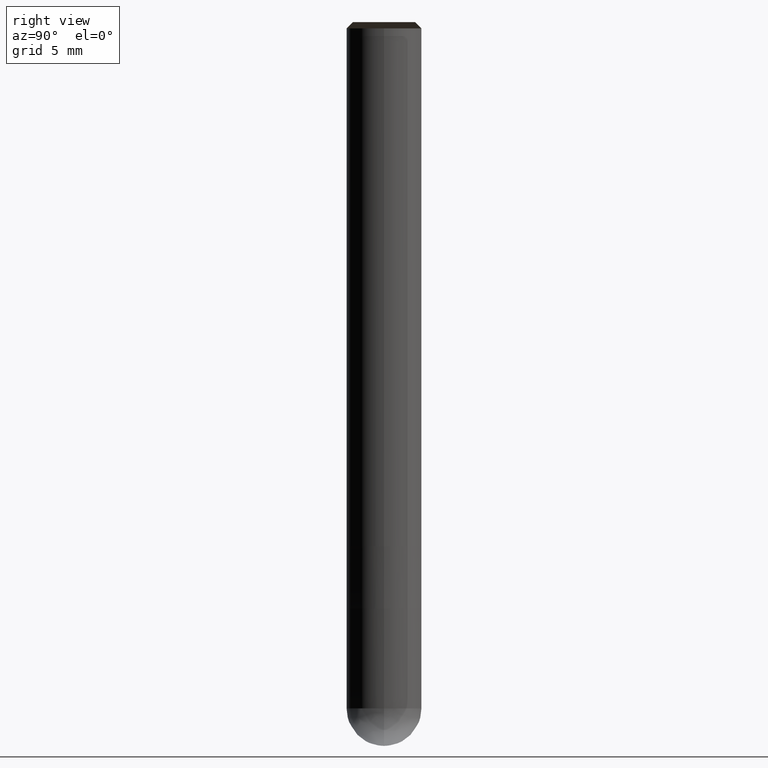
[diagram: clean part render]
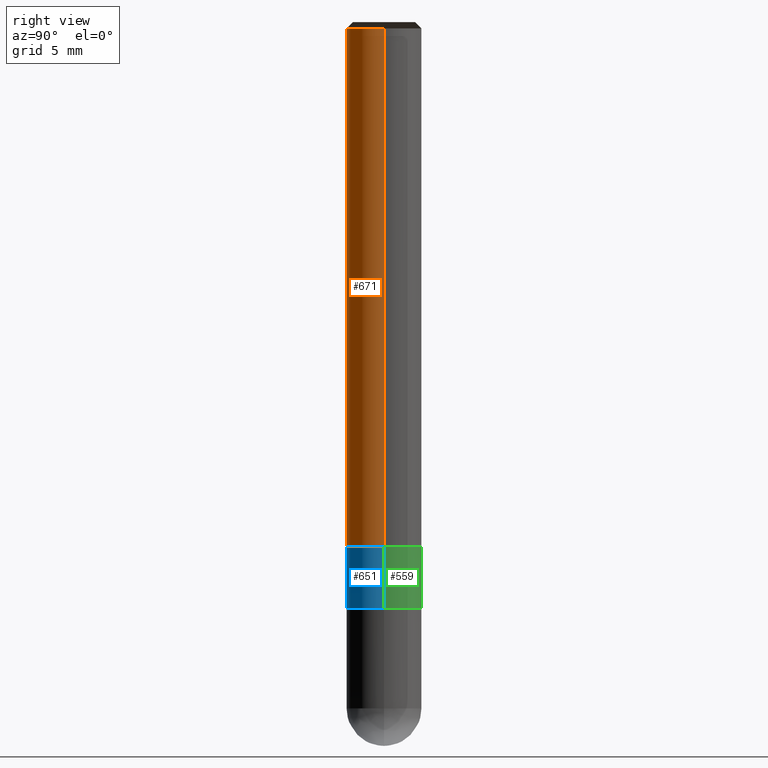
[diagram: same view with three faces highlighted in distinct colors, each labeled with its STEP entity id]
A machine part, right view with three faces highlighted in distinct colors.
Their STEP definitions:

[orange] entity #671 — the highlighted face is a freeform B-spline surface patch.
#386=CARTESIAN_POINT('',(3.0,0.0,0.0));
#390=CARTESIAN_POINT('',(-3.0,0.0,0.0));
#391=CARTESIAN_POINT('',(3.0,0.0,41.5));
#395=CARTESIAN_POINT('',(-3.0,0.0,41.5));
#402=CARTESIAN_POINT('',(-3.0,-3.0,0.0));
#403=CARTESIAN_POINT('',(0.0,-3.0,0.0));
#404=CARTESIAN_POINT('',(3.0,-3.0,0.0));
#405=CARTESIAN_POINT('',(-3.0,-3.0,41.5));
#406=CARTESIAN_POINT('',(0.0,-3.0,41.5));
#407=CARTESIAN_POINT('',(3.0,-3.0,41.5));
#652=(
BOUNDED_SURFACE()
B_SPLINE_SURFACE(1,2,(
(#390,#402,#403,#404,#386),
(#395,#405,#406,#407,#391)
), .UNSPECIFIED.,.F.,.F.,.F.)
B_SPLINE_SURFACE_WITH_KNOTS((2,2),(3,2,3),(
0.0,1.0),(
0.0,0.5,1.0), .UNSPECIFIED.)
GEOMETRIC_REPRESENTATION_ITEM()
RATIONAL_B_SPLINE_SURFACE(((1.0,0.707106781187,1.0,0.707106781187,1.0),
(1.0,0.707106781187,1.0,0.707106781187,1.0)
))
REPRESENTATION_ITEM('')
SURFACE()
);
#653=(
BOUNDED_CURVE()
B_SPLINE_CURVE(2,(#386,#404,#403,#402,#390),.UNSPECIFIED.,.F.,.F.)
B_SPLINE_CURVE_WITH_KNOTS((3,2,3),
(0.0,0.5,1.0),.UNSPECIFIED.)
CURVE()
GEOMETRIC_REPRESENTATION_ITEM()
RATIONAL_B_SPLINE_CURVE((1.0,0.707106781187,1.0,0.707106781187,1.0))
REPRESENTATION_ITEM('')
);
#654=(
BOUNDED_CURVE()
B_SPLINE_CURVE(1,(#390,#395),.UNSPECIFIED.,.F.,.F.)
B_SPLINE_CURVE_WITH_KNOTS((2,2),
(0.0,1.0),.UNSPECIFIED.)
CURVE()
GEOMETRIC_REPRESENTATION_ITEM()
RATIONAL_B_SPLINE_CURVE((1.0,1.0))
REPRESENTATION_ITEM('')
);
#655=(
BOUNDED_CURVE()
B_SPLINE_CURVE(2,(#395,#405,#406,#407,#391),.UNSPECIFIED.,.F.,.F.)
B_SPLINE_CURVE_WITH_KNOTS((3,2,3),
(0.0,0.5,1.0),.UNSPECIFIED.)
CURVE()
GEOMETRIC_REPRESENTATION_ITEM()
RATIONAL_B_SPLINE_CURVE((1.0,0.707106781187,1.0,0.707106781187,1.0))
REPRESENTATION_ITEM('')
);
#656=(
BOUNDED_CURVE()
B_SPLINE_CURVE(1,(#391,#386),.UNSPECIFIED.,.F.,.F.)
B_SPLINE_CURVE_WITH_KNOTS((2,2),
(0.0,1.0),.UNSPECIFIED.)
CURVE()
GEOMETRIC_REPRESENTATION_ITEM()
RATIONAL_B_SPLINE_CURVE((1.0,1.0))
REPRESENTATION_ITEM('')
);
#657=VERTEX_POINT('',#386);
#658=VERTEX_POINT('',#390);
#659=VERTEX_POINT('',#391);
#660=VERTEX_POINT('',#395);
#661=EDGE_CURVE('',#657,#658,#653,.T.);
#662=EDGE_CURVE('',#658,#660,#654,.T.);
#663=EDGE_CURVE('',#660,#659,#655,.T.);
#664=EDGE_CURVE('',#659,#657,#656,.T.);
#665=ORIENTED_EDGE('',*,*,#661,.T.);
#666=ORIENTED_EDGE('',*,*,#662,.T.);
#667=ORIENTED_EDGE('',*,*,#663,.T.);
#668=ORIENTED_EDGE('',*,*,#664,.T.);
#669=EDGE_LOOP('',(#665,#666,#667,#668));
#670=FACE_OUTER_BOUND('',#669,.T.);
#671=ADVANCED_FACE('',(#670),#652,.T.);

[blue] entity #651 — the highlighted face is a freeform B-spline surface patch.
#371=CARTESIAN_POINT('',(3.0,0.0,-5.0));
#375=CARTESIAN_POINT('',(-3.0,0.0,-5.0));
#383=CARTESIAN_POINT('',(-3.0,-3.0,-5.0));
#384=CARTESIAN_POINT('',(0.0,-3.0,-5.0));
#385=CARTESIAN_POINT('',(3.0,-3.0,-5.0));
#386=CARTESIAN_POINT('',(3.0,0.0,0.0));
#390=CARTESIAN_POINT('',(-3.0,0.0,0.0));
#402=CARTESIAN_POINT('',(-3.0,-3.0,0.0));
#403=CARTESIAN_POINT('',(0.0,-3.0,0.0));
#404=CARTESIAN_POINT('',(3.0,-3.0,0.0));
#632=(
BOUNDED_SURFACE()
B_SPLINE_SURFACE(1,2,(
(#375,#383,#384,#385,#371),
(#390,#402,#403,#404,#386)
), .UNSPECIFIED.,.F.,.F.,.F.)
B_SPLINE_SURFACE_WITH_KNOTS((2,2),(3,2,3),(
0.0,1.0),(
0.0,0.5,1.0), .UNSPECIFIED.)
GEOMETRIC_REPRESENTATION_ITEM()
RATIONAL_B_SPLINE_SURFACE(((1.0,0.707106781187,1.0,0.707106781187,1.0),
(1.0,0.707106781187,1.0,0.707106781187,1.0)
))
REPRESENTATION_ITEM('')
SURFACE()
);
#633=(
BOUNDED_CURVE()
B_SPLINE_CURVE(2,(#371,#385,#384,#383,#375),.UNSPECIFIED.,.F.,.F.)
B_SPLINE_CURVE_WITH_KNOTS((3,2,3),
(0.0,0.5,1.0),.UNSPECIFIED.)
CURVE()
GEOMETRIC_REPRESENTATION_ITEM()
RATIONAL_B_SPLINE_CURVE((1.0,0.707106781187,1.0,0.707106781187,1.0))
REPRESENTATION_ITEM('')
);
#634=(
BOUNDED_CURVE()
B_SPLINE_CURVE(1,(#375,#390),.UNSPECIFIED.,.F.,.F.)
B_SPLINE_CURVE_WITH_KNOTS((2,2),
(0.0,1.0),.UNSPECIFIED.)
CURVE()
GEOMETRIC_REPRESENTATION_ITEM()
RATIONAL_B_SPLINE_CURVE((1.0,1.0))
REPRESENTATION_ITEM('')
);
#635=(
BOUNDED_CURVE()
B_SPLINE_CURVE(2,(#390,#402,#403,#404,#386),.UNSPECIFIED.,.F.,.F.)
B_SPLINE_CURVE_WITH_KNOTS((3,2,3),
(0.0,0.5,1.0),.UNSPECIFIED.)
CURVE()
GEOMETRIC_REPRESENTATION_ITEM()
RATIONAL_B_SPLINE_CURVE((1.0,0.707106781187,1.0,0.707106781187,1.0))
REPRESENTATION_ITEM('')
);
#636=(
BOUNDED_CURVE()
B_SPLINE_CURVE(1,(#386,#371),.UNSPECIFIED.,.F.,.F.)
B_SPLINE_CURVE_WITH_KNOTS((2,2),
(0.0,1.0),.UNSPECIFIED.)
CURVE()
GEOMETRIC_REPRESENTATION_ITEM()
RATIONAL_B_SPLINE_CURVE((1.0,1.0))
REPRESENTATION_ITEM('')
);
#637=VERTEX_POINT('',#371);
#638=VERTEX_POINT('',#375);
#639=VERTEX_POINT('',#386);
#640=VERTEX_POINT('',#390);
#641=EDGE_CURVE('',#637,#638,#633,.T.);
#642=EDGE_CURVE('',#638,#640,#634,.T.);
#643=EDGE_CURVE('',#640,#639,#635,.T.);
#644=EDGE_CURVE('',#639,#637,#636,.T.);
#645=ORIENTED_EDGE('',*,*,#641,.T.);
#646=ORIENTED_EDGE('',*,*,#642,.T.);
#647=ORIENTED_EDGE('',*,*,#643,.T.);
#648=ORIENTED_EDGE('',*,*,#644,.T.);
#649=EDGE_LOOP('',(#645,#646,#647,#648));
#650=FACE_OUTER_BOUND('',#649,.T.);
#651=ADVANCED_FACE('',(#650),#632,.T.);

[green] entity #559 — the highlighted face is a freeform B-spline surface patch.
#371=CARTESIAN_POINT('',(3.0,0.0,-5.0));
#372=CARTESIAN_POINT('',(3.0,3.0,-5.0));
#373=CARTESIAN_POINT('',(0.0,3.0,-5.0));
#374=CARTESIAN_POINT('',(-3.0,3.0,-5.0));
#375=CARTESIAN_POINT('',(-3.0,0.0,-5.0));
#386=CARTESIAN_POINT('',(3.0,0.0,0.0));
#387=CARTESIAN_POINT('',(3.0,3.0,0.0));
#388=CARTESIAN_POINT('',(0.0,3.0,0.0));
#389=CARTESIAN_POINT('',(-3.0,3.0,0.0));
#390=CARTESIAN_POINT('',(-3.0,0.0,0.0));
#540=(
BOUNDED_SURFACE()
B_SPLINE_SURFACE(1,2,(
(#371,#372,#373,#374,#375),
(#386,#387,#388,#389,#390)
), .UNSPECIFIED.,.F.,.F.,.F.)
B_SPLINE_SURFACE_WITH_KNOTS((2,2),(3,2,3),(
0.0,1.0),(
0.0,0.5,1.0), .UNSPECIFIED.)
GEOMETRIC_REPRESENTATION_ITEM()
RATIONAL_B_SPLINE_SURFACE(((1.0,0.707106781187,1.0,0.707106781187,1.0),
(1.0,0.707106781187,1.0,0.707106781187,1.0)
))
REPRESENTATION_ITEM('')
SURFACE()
);
#541=(
BOUNDED_CURVE()
B_SPLINE_CURVE(2,(#375,#374,#373,#372,#371),.UNSPECIFIED.,.F.,.F.)
B_SPLINE_CURVE_WITH_KNOTS((3,2,3),
(0.0,0.5,1.0),.UNSPECIFIED.)
CURVE()
GEOMETRIC_REPRESENTATION_ITEM()
RATIONAL_B_SPLINE_CURVE((1.0,0.707106781187,1.0,0.707106781187,1.0))
REPRESENTATION_ITEM('')
);
#542=(
BOUNDED_CURVE()
B_SPLINE_CURVE(1,(#371,#386),.UNSPECIFIED.,.F.,.F.)
B_SPLINE_CURVE_WITH_KNOTS((2,2),
(0.0,1.0),.UNSPECIFIED.)
CURVE()
GEOMETRIC_REPRESENTATION_ITEM()
RATIONAL_B_SPLINE_CURVE((1.0,1.0))
REPRESENTATION_ITEM('')
);
#543=(
BOUNDED_CURVE()
B_SPLINE_CURVE(2,(#386,#387,#388,#389,#390),.UNSPECIFIED.,.F.,.F.)
B_SPLINE_CURVE_WITH_KNOTS((3,2,3),
(0.0,0.5,1.0),.UNSPECIFIED.)
CURVE()
GEOMETRIC_REPRESENTATION_ITEM()
RATIONAL_B_SPLINE_CURVE((1.0,0.707106781187,1.0,0.707106781187,1.0))
REPRESENTATION_ITEM('')
);
#544=(
BOUNDED_CURVE()
B_SPLINE_CURVE(1,(#390,#375),.UNSPECIFIED.,.F.,.F.)
B_SPLINE_CURVE_WITH_KNOTS((2,2),
(0.0,1.0),.UNSPECIFIED.)
CURVE()
GEOMETRIC_REPRESENTATION_ITEM()
RATIONAL_B_SPLINE_CURVE((1.0,1.0))
REPRESENTATION_ITEM('')
);
#545=VERTEX_POINT('',#371);
#546=VERTEX_POINT('',#375);
#547=VERTEX_POINT('',#386);
#548=VERTEX_POINT('',#390);
#549=EDGE_CURVE('',#546,#545,#541,.T.);
#550=EDGE_CURVE('',#545,#547,#542,.T.);
#551=EDGE_CURVE('',#547,#548,#543,.T.);
#552=EDGE_CURVE('',#548,#546,#544,.T.);
#553=ORIENTED_EDGE('',*,*,#549,.T.);
#554=ORIENTED_EDGE('',*,*,#550,.T.);
#555=ORIENTED_EDGE('',*,*,#551,.T.);
#556=ORIENTED_EDGE('',*,*,#552,.T.);
#557=EDGE_LOOP('',(#553,#554,#555,#556));
#558=FACE_OUTER_BOUND('',#557,.T.);
#559=ADVANCED_FACE('',(#558),#540,.T.);